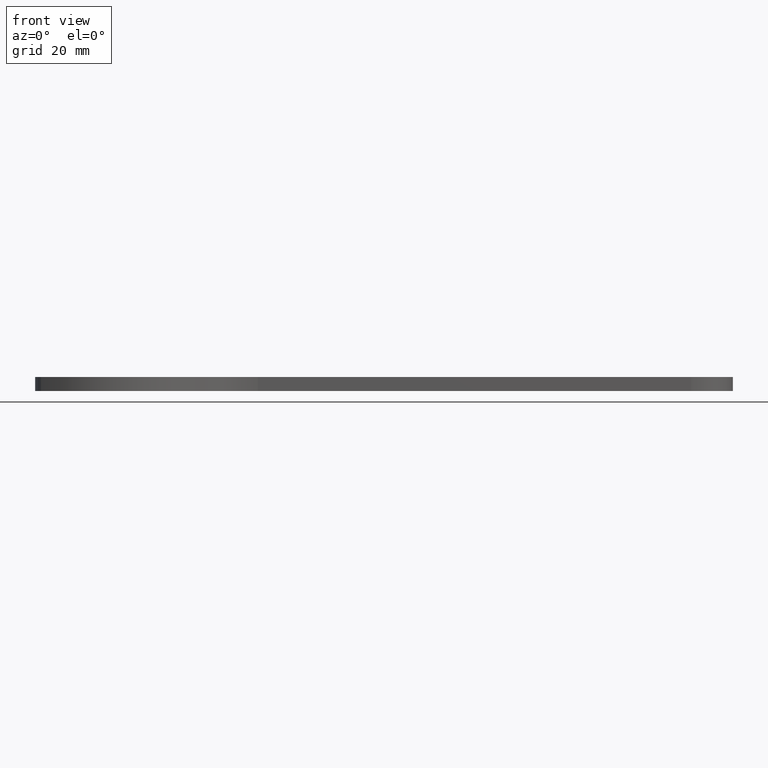
[diagram: clean part render]
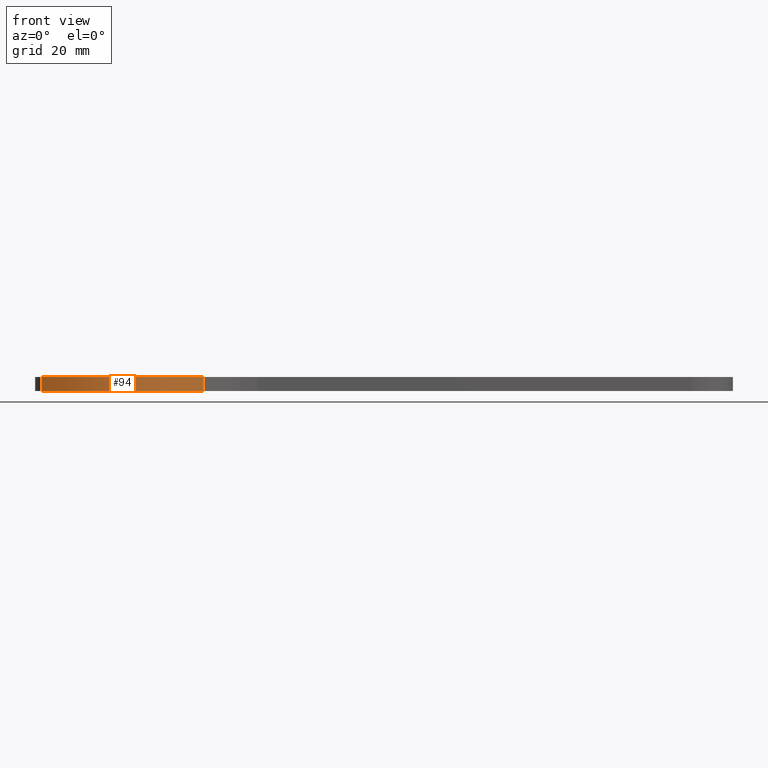
[diagram: same view with one face highlighted and labeled with its STEP entity id]
A machine part, front view. The second image highlights one B-rep face of the part: STEP entity #94.
In plain terms, the highlighted cylindrical surface (partial cylindrical patch) has radius 32.5 mm, axis along (-0, -0, 1).
Its self-contained STEP definition (entity closure, byte-faithful):
#94 = ADVANCED_FACE( '', ( #187 ), #188, .T. );
#187 = FACE_OUTER_BOUND( '', #275, .T. );
#188 = CYLINDRICAL_SURFACE( '', #276, 32.5000000000000 );
#275 = EDGE_LOOP( '', ( #477, #478, #479, #480 ) );
#276 = AXIS2_PLACEMENT_3D( '', #481, #482, #483 );
#477 = ORIENTED_EDGE( '', *, *, #606, .T. );
#478 = ORIENTED_EDGE( '', *, *, #599, .T. );
#479 = ORIENTED_EDGE( '', *, *, #571, .F. );
#480 = ORIENTED_EDGE( '', *, *, #604, .F. );
#481 = CARTESIAN_POINT( '', ( 5.00000000000000, 1.00000000000000, 2.00000000000000 ) );
#482 = DIRECTION( '', ( -0.000000000000000, -0.000000000000000, 1.00000000000000 ) );
#483 = DIRECTION( '', ( -1.00000000000000, 0.000000000000000, 0.000000000000000 ) );
#571 = EDGE_CURVE( '', #691, #693, #694, .T. );
#599 = EDGE_CURVE( '', #728, #693, #730, .T. );
#604 = EDGE_CURVE( '', #734, #691, #736, .T. );
#606 = EDGE_CURVE( '', #734, #728, #738, .T. );
#691 = VERTEX_POINT( '', #851 );
#693 = VERTEX_POINT( '', #853 );
#694 = CIRCLE( '', #854, 32.5000000000000 );
#728 = VERTEX_POINT( '', #900 );
#730 = LINE( '', #902, #903 );
#734 = VERTEX_POINT( '', #907 );
#736 = LINE( '', #909, #910 );
#738 = CIRCLE( '', #912, 32.5000000000000 );
#851 = CARTESIAN_POINT( '', ( 30.2769355220873, -19.4285714285714, -2.00000000000000 ) );
#853 = CARTESIAN_POINT( '', ( -16.2727272727272, -23.5707361383449, -2.00000000000000 ) );
#854 = AXIS2_PLACEMENT_3D( '', #986, #987, #988 );
#900 = CARTESIAN_POINT( '', ( -16.2727272727272, -23.5707361383449, 2.00000000000000 ) );
#902 = CARTESIAN_POINT( '', ( -16.2727272727272, -23.5707361383449, 2.00000000000000 ) );
#903 = VECTOR( '', #1016, 1000.00000000000 );
#907 = CARTESIAN_POINT( '', ( 30.2769355220873, -19.4285714285714, 2.00000000000000 ) );
#909 = CARTESIAN_POINT( '', ( 30.2769355220873, -19.4285714285714, 2.00000000000000 ) );
#910 = VECTOR( '', #1023, 1000.00000000000 );
#912 = AXIS2_PLACEMENT_3D( '', #1024, #1025, #1026 );
#986 = CARTESIAN_POINT( '', ( 5.00000000000000, 1.00000000000000, -2.00000000000000 ) );
#987 = DIRECTION( '', ( 0.000000000000000, 0.000000000000000, -1.00000000000000 ) );
#988 = DIRECTION( '', ( 1.00000000000000, 0.000000000000000, 0.000000000000000 ) );
#1016 = DIRECTION( '', ( 0.000000000000000, 0.000000000000000, -1.00000000000000 ) );
#1023 = DIRECTION( '', ( 0.000000000000000, 0.000000000000000, -1.00000000000000 ) );
#1024 = CARTESIAN_POINT( '', ( 5.00000000000000, 1.00000000000000, 2.00000000000000 ) );
#1025 = DIRECTION( '', ( 0.000000000000000, 0.000000000000000, -1.00000000000000 ) );
#1026 = DIRECTION( '', ( 1.00000000000000, 0.000000000000000, 0.000000000000000 ) );